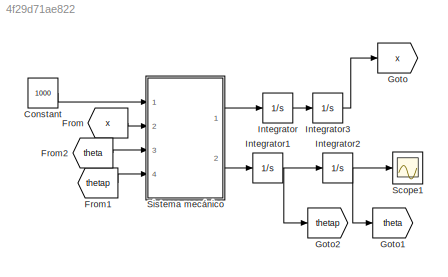
MODEL slx_4f29d71ae822
KIND model
CONFIG AbsTol = auto
CONFIG EnableMultiTasking = off
CONFIG FixedStep = auto
CONFIG MaxStep = auto
CONFIG MinStep = auto
CONFIG RelTol = 1e-3
CONFIG SampleTimeConstraint = Unconstrained
CONFIG Solver = VariableStepAuto
CONFIG SolverName = VariableStepAuto
CONFIG StartTime = 0.0
CONFIG StopTime = 2
BLOCK [Constant] Constant
  Value = 1000
BLOCK [From] From
  GotoTag = x
BLOCK [From] From1
  GotoTag = thetap
BLOCK [From] From2
  GotoTag = theta
BLOCK [Goto] Goto
  GotoTag = x
BLOCK [Goto] Goto1
  GotoTag = theta
BLOCK [Goto] Goto2
  GotoTag = thetap
BLOCK [Integrator] Integrator
  Ports = [1, 1]
BLOCK [Integrator] Integrator1
  Ports = [1, 1]
BLOCK [Integrator] Integrator2
  Ports = [1, 1]
BLOCK [Integrator] Integrator3
  Ports = [1, 1]
BLOCK [Scope] Scope1
  Floating = off
  NumInputPorts = 1
  Ports = [1]
  ScopeSpecificationString = Simulink.scopes.TimeScopeBlockCfg('CurrentConfiguration', extmgr.ConfigurationSet(extmgr.Configuration('Core','General UI',true),extmgr.Configuration('Core','Source UI',true),extmgr.Configuration('Sources','WiredSimulink',true,'DataLoggingVariableName','ScopeData1'),extmgr.Configuration('Visuals','Time Domain',true,'SerializedDisplays',{struct('MinYLimReal','-0.12415','MaxYLimReal','1.11739','YLab...<+1471ch>
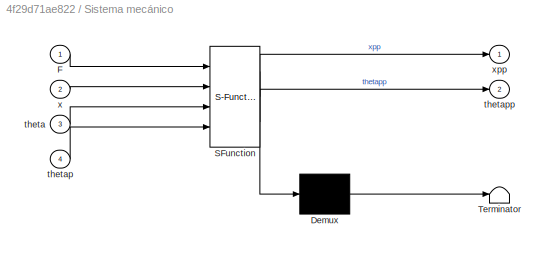
BLOCK [SubSystem] Sistema mecánico
  ErrorFcn = Stateflow.Translate.translate
  PermitHierarchicalResolution = ExplicitOnly
  Ports = [4, 2]
  RequestExecContextInheritance = off
  SFBlockType = MATLAB Function
  TreatAsAtomicUnit = on
BLOCK [Demux] Sistema mecánico/ Demux 
  Outputs = 1
  Ports = [1, 1]
BLOCK [S-Function] Sistema mecánico/ SFunction 
  EnableBusSupport = on
  FunctionName = sf_sfun
  PortCounts = [4 3]
  Ports = [4, 3]
  SFcnIsStateOwnerBlock = off
  SFunctionDeploymentMode = off
  Tag = Stateflow S-Function sistema_mecanico_lagrange 2
BLOCK [Terminator] Sistema mecánico/ Terminator 
BLOCK [Inport] Sistema mecánico/F
  IconDisplay = Port number
BLOCK [Inport] Sistema mecánico/theta
  IconDisplay = Port number
  Port = 3
BLOCK [Inport] Sistema mecánico/thetap
  IconDisplay = Port number
  Port = 4
BLOCK [Outport] Sistema mecánico/thetapp
  IconDisplay = Port number
  Port = 2
BLOCK [Inport] Sistema mecánico/x
  IconDisplay = Port number
  Port = 2
BLOCK [Outport] Sistema mecánico/xpp
  IconDisplay = Port number
LINE Constant:1 -> Sistema mecánico:1
LINE From1:1 -> Sistema mecánico:4
LINE From2:1 -> Sistema mecánico:3
LINE From:1 -> Sistema mecánico:2
NET Integrator1:1 -> Goto2:1, Integrator2:1
NET Integrator2:1 -> Goto1:1, Scope1:1
LINE Integrator3:1 -> Goto:1
LINE Integrator:1 -> Integrator3:1
LINE Sistema mecánico:1 -> Integrator:1
LINE Sistema mecánico:2 -> Integrator1:1
note: NET lines group one-source signal fan-out (src -> all destinations, sorted); 1:1 wires keep LINE
CHART Sistema mecánico states=1 transitions=1
  STATE_LABEL 'eML_blk_kernel()'
  STATE_LABEL 'SCRIPT:\nfunction [xpp,thetapp] = fcn(F,x,theta, thetap)\n\n%Parametros oscilaciones\nr=0.01;\nM=10;\nk1=15;\nk2=25;\nk=10;\nJ=0.1;\nb=2;\n\n\n\n%ecuaciones dinámicas\nxpp=(-k1*x-k2*(x-r*theta))/M;\nthetapp=(F*r-k*theta-k2*r*(r*theta-x)-b*thetap)/J;\n'
